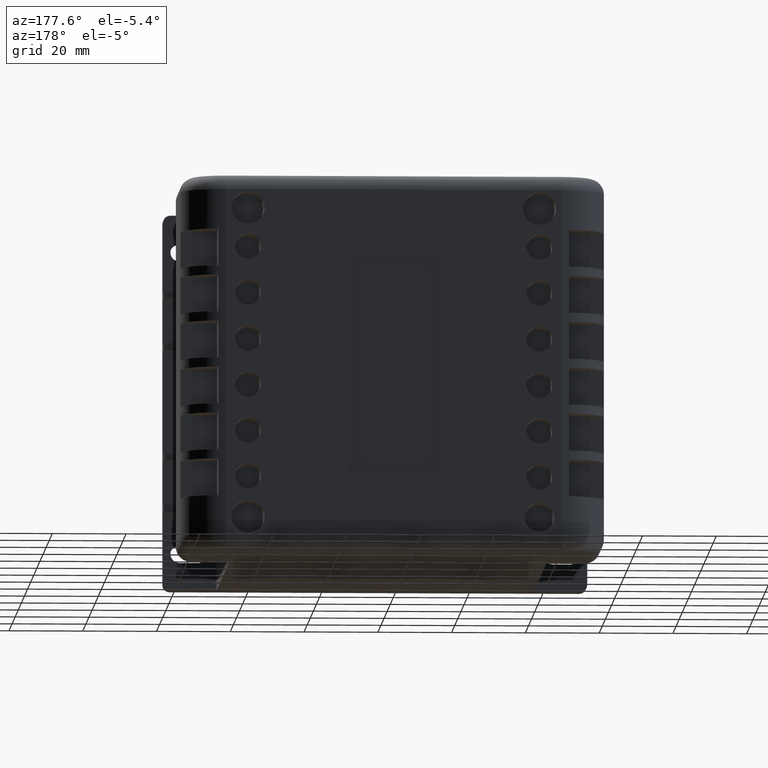
[diagram: clean part render]
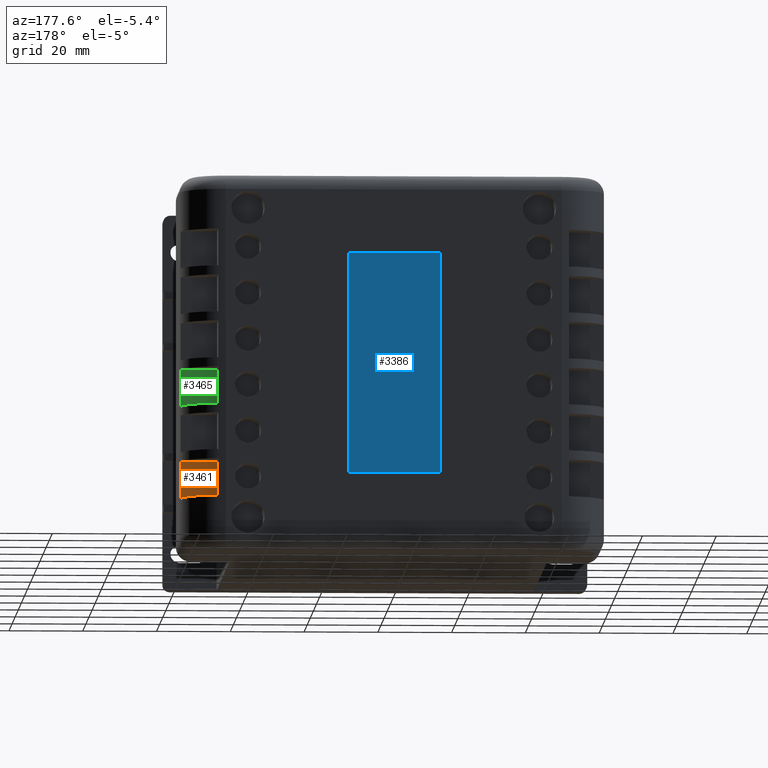
[diagram: same view with three faces highlighted in distinct colors, each labeled with its STEP entity id]
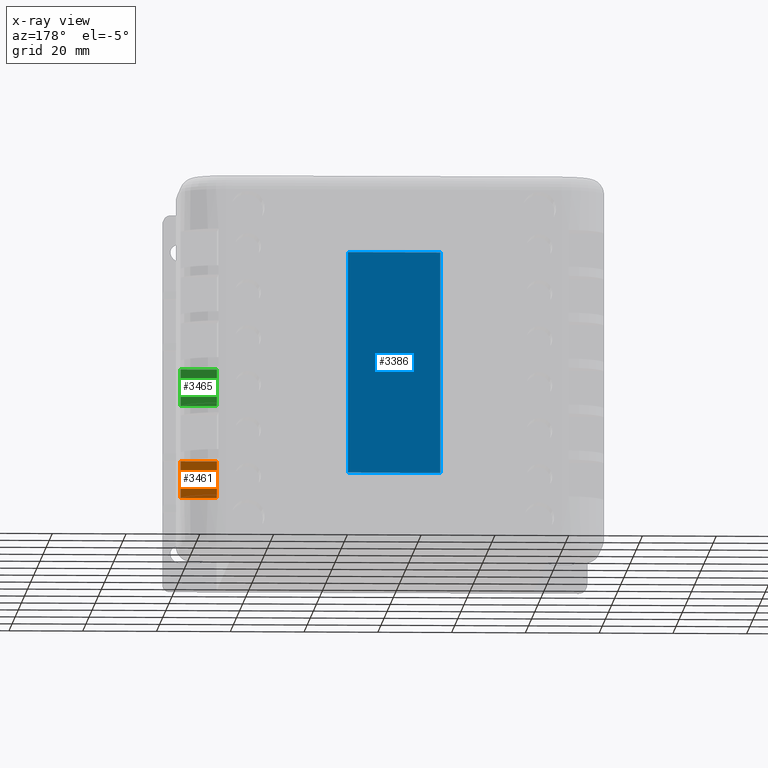
[diagram: x-ray of the same camera — body ghosted, the three highlighted faces saturated]
A machine part, auxiliary view with three faces highlighted in distinct colors.
The next image is the same camera in x-ray (body ghosted, the three faces saturated) — at least one of them is partly hidden behind the body in this view.
Their STEP definitions:

[orange] entity #3461 — the highlighted planar face has unit normal (0, -1, 0).
#422=FACE_OUTER_BOUND('',#662,.T.);
#662=EDGE_LOOP('',(#2843,#2844,#2845,#2846));
#964=LINE('',#5697,#1284);
#978=LINE('',#5743,#1298);
#979=LINE('',#5745,#1299);
#980=LINE('',#5746,#1300);
#1284=VECTOR('',#4759,10.);
#1298=VECTOR('',#4797,10.);
#1299=VECTOR('',#4798,10.);
#1300=VECTOR('',#4799,10.);
#1581=VERTEX_POINT('',#5694);
#1582=VERTEX_POINT('',#5696);
#1602=VERTEX_POINT('',#5742);
#1603=VERTEX_POINT('',#5744);
#1999=EDGE_CURVE('',#1581,#1582,#964,.T.);
#2022=EDGE_CURVE('',#1602,#1581,#978,.T.);
#2023=EDGE_CURVE('',#1603,#1602,#979,.T.);
#2024=EDGE_CURVE('',#1582,#1603,#980,.T.);
#2843=ORIENTED_EDGE('',*,*,#1999,.F.);
#2844=ORIENTED_EDGE('',*,*,#2022,.F.);
#2845=ORIENTED_EDGE('',*,*,#2023,.F.);
#2846=ORIENTED_EDGE('',*,*,#2024,.F.);
#3050=PLANE('',#3880);
#3461=ADVANCED_FACE('',(#422),#3050,.F.);
#3880=AXIS2_PLACEMENT_3D('',#5741,#4795,#4796);
#4759=DIRECTION('',(3.483052626275E-16,0.,1.));
#4795=DIRECTION('center_axis',(0.,-1.,0.));
#4796=DIRECTION('ref_axis',(0.,0.,-1.));
#4797=DIRECTION('',(1.,0.,0.));
#4798=DIRECTION('',(4.44089209850063E-16,0.,-1.));
#4799=DIRECTION('',(-1.,0.,0.));
#5694=CARTESIAN_POINT('',(-0.16784043380076,27.,14.75));
#5696=CARTESIAN_POINT('',(-0.167840433800757,27.,24.75));
#5697=CARTESIAN_POINT('',(-0.167840433800739,27.,76.5));
#5741=CARTESIAN_POINT('Origin',(-5.,27.,19.75));
#5742=CARTESIAN_POINT('',(-10.,27.,14.75));
#5743=CARTESIAN_POINT('',(1.61599129139884E-14,27.,14.75));
#5744=CARTESIAN_POINT('',(-10.,27.,24.75));
#5745=CARTESIAN_POINT('',(-10.,27.,14.75));
#5746=CARTESIAN_POINT('',(-10.,27.,24.75));

[blue] entity #3386 — the highlighted planar face has unit normal (0, -1, 0).
#347=FACE_OUTER_BOUND('',#558,.T.);
#558=EDGE_LOOP('',(#2530,#2531,#2532,#2533));
#881=LINE('',#5386,#1201);
#885=LINE('',#5393,#1205);
#888=LINE('',#5399,#1208);
#890=LINE('',#5402,#1210);
#1201=VECTOR('',#4402,10.);
#1205=VECTOR('',#4408,10.);
#1208=VECTOR('',#4413,10.);
#1210=VECTOR('',#4417,10.);
#1490=VERTEX_POINT('',#5383);
#1491=VERTEX_POINT('',#5385);
#1493=VERTEX_POINT('',#5391);
#1495=VERTEX_POINT('',#5397);
#1855=EDGE_CURVE('',#1490,#1491,#881,.T.);
#1859=EDGE_CURVE('',#1493,#1490,#885,.T.);
#1862=EDGE_CURVE('',#1495,#1493,#888,.T.);
#1864=EDGE_CURVE('',#1491,#1495,#890,.T.);
#2530=ORIENTED_EDGE('',*,*,#1864,.F.);
#2531=ORIENTED_EDGE('',*,*,#1855,.F.);
#2532=ORIENTED_EDGE('',*,*,#1859,.F.);
#2533=ORIENTED_EDGE('',*,*,#1862,.F.);
#3003=PLANE('',#3735);
#3386=ADVANCED_FACE('',(#347),#3003,.F.);
#3735=AXIS2_PLACEMENT_3D('',#5403,#4418,#4419);
#4402=DIRECTION('',(1.,0.,-8.88178419700125E-16));
#4408=DIRECTION('',(0.,0.,-1.));
#4413=DIRECTION('',(-1.,0.,-2.1316282072803E-15));
#4417=DIRECTION('',(0.,0.,1.));
#4418=DIRECTION('center_axis',(0.,-1.,0.));
#4419=DIRECTION('ref_axis',(0.,0.,-1.));
#5383=CARTESIAN_POINT('',(-70.1678404338007,36.,21.));
#5385=CARTESIAN_POINT('',(-45.1678404338007,36.,21.));
#5386=CARTESIAN_POINT('',(-45.1678404338007,36.,21.));
#5391=CARTESIAN_POINT('',(-70.1678404338007,36.,81.));
#5393=CARTESIAN_POINT('',(-70.1678404338007,36.,21.));
#5397=CARTESIAN_POINT('',(-45.1678404338007,36.,81.));
#5399=CARTESIAN_POINT('',(-70.1678404338007,36.,81.));
#5402=CARTESIAN_POINT('',(-45.1678404338007,36.,81.));
#5403=CARTESIAN_POINT('Origin',(-57.6678404338007,36.,51.));

[green] entity #3465 — the highlighted planar face has unit normal (0, -1, 0).
#426=FACE_OUTER_BOUND('',#666,.T.);
#666=EDGE_LOOP('',(#2857,#2858,#2859,#2860));
#968=LINE('',#5713,#1288);
#986=LINE('',#5759,#1306);
#987=LINE('',#5761,#1307);
#988=LINE('',#5762,#1308);
#1288=VECTOR('',#4771,10.);
#1306=VECTOR('',#4813,10.);
#1307=VECTOR('',#4814,10.);
#1308=VECTOR('',#4815,10.);
#1589=VERTEX_POINT('',#5710);
#1590=VERTEX_POINT('',#5712);
#1606=VERTEX_POINT('',#5758);
#1607=VERTEX_POINT('',#5760);
#2007=EDGE_CURVE('',#1589,#1590,#968,.T.);
#2030=EDGE_CURVE('',#1606,#1589,#986,.T.);
#2031=EDGE_CURVE('',#1607,#1606,#987,.T.);
#2032=EDGE_CURVE('',#1590,#1607,#988,.T.);
#2857=ORIENTED_EDGE('',*,*,#2007,.F.);
#2858=ORIENTED_EDGE('',*,*,#2030,.F.);
#2859=ORIENTED_EDGE('',*,*,#2031,.F.);
#2860=ORIENTED_EDGE('',*,*,#2032,.F.);
#3054=PLANE('',#3884);
#3465=ADVANCED_FACE('',(#426),#3054,.F.);
#3884=AXIS2_PLACEMENT_3D('',#5757,#4811,#4812);
#4771=DIRECTION('',(3.483052626275E-16,0.,1.));
#4811=DIRECTION('center_axis',(0.,-1.,0.));
#4812=DIRECTION('ref_axis',(0.,0.,-1.));
#4813=DIRECTION('',(1.,0.,0.));
#4814=DIRECTION('',(4.44089209850063E-16,0.,-1.));
#4815=DIRECTION('',(-1.,0.,0.));
#5710=CARTESIAN_POINT('',(-0.167840433800752,27.,39.75));
#5712=CARTESIAN_POINT('',(-0.167840433800748,27.,49.75));
#5713=CARTESIAN_POINT('',(-0.167840433800739,27.,76.5));
#5757=CARTESIAN_POINT('Origin',(-5.,27.,44.75));
#5758=CARTESIAN_POINT('',(-10.,27.,39.75));
#5759=CARTESIAN_POINT('',(1.61599129139884E-14,27.,39.75));
#5760=CARTESIAN_POINT('',(-10.,27.,49.75));
#5761=CARTESIAN_POINT('',(-10.,27.,39.75));
#5762=CARTESIAN_POINT('',(-10.,27.,49.75));